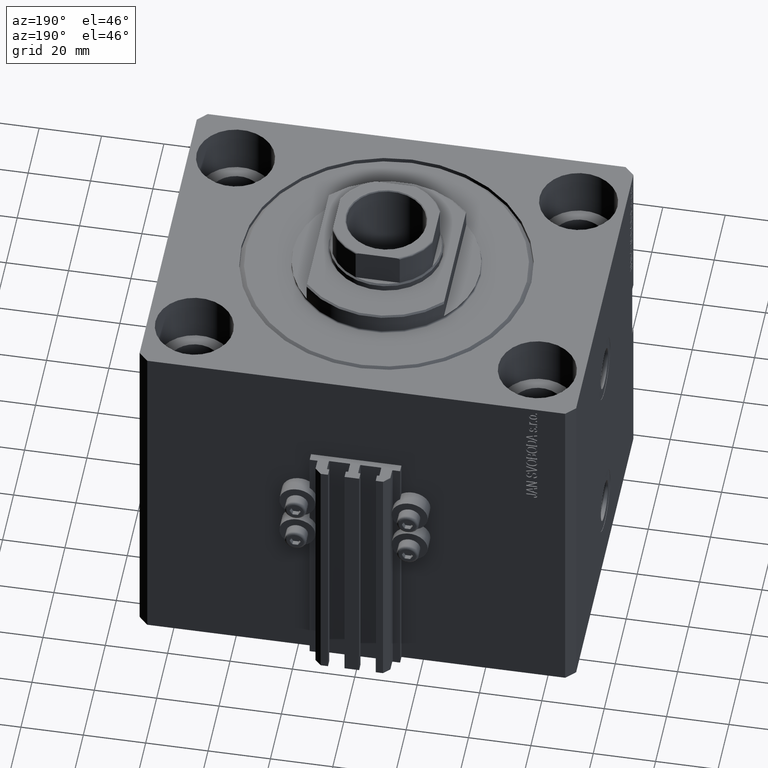
[diagram: clean part render]
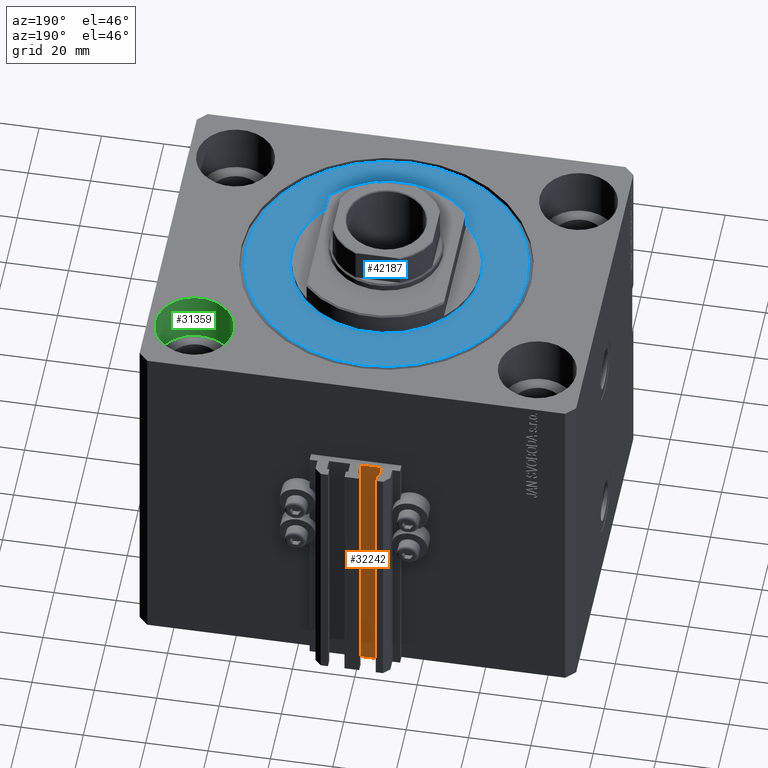
[diagram: same view with three faces highlighted in distinct colors, each labeled with its STEP entity id]
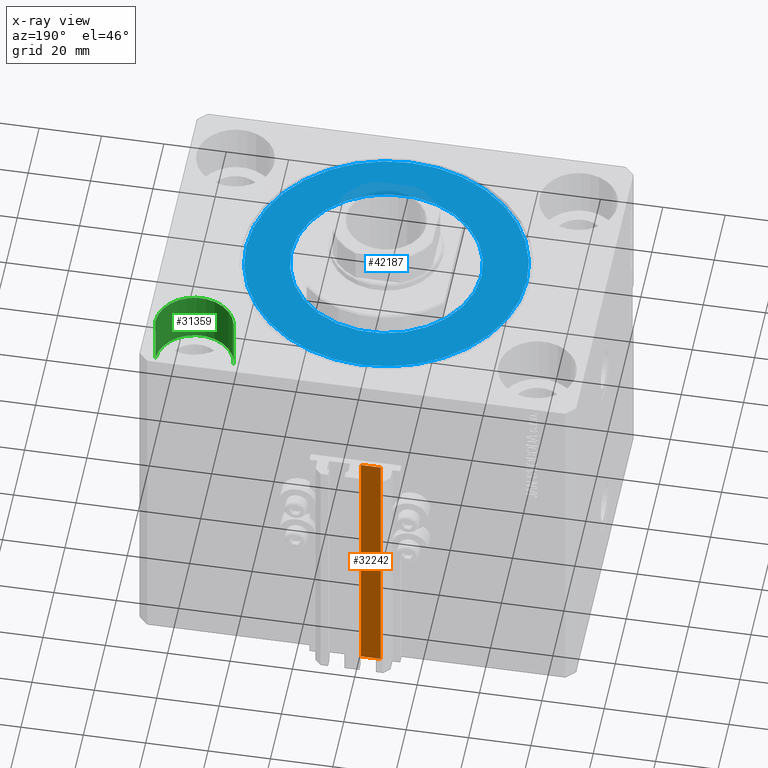
[diagram: x-ray of the same camera — body ghosted, the three highlighted faces saturated]
A machine part, auxiliary view with three faces highlighted in distinct colors.
The next image is the same camera in x-ray (body ghosted, the three faces saturated) — at least one of them is partly hidden behind the body in this view.
Their STEP definitions:

[orange] entity #32242 — the highlighted planar face has unit normal (0, 1, 0).
#1852 = ORIENTED_EDGE ( 'NONE', *, *, #2286, .F. ) ;
#2286 = EDGE_CURVE ( 'NONE', #36978, #2469, #24624, .T. ) ;
#2469 = VERTEX_POINT ( 'NONE', #41845 ) ;
#3628 = ORIENTED_EDGE ( 'NONE', *, *, #23693, .F. ) ;
#5125 = CARTESIAN_POINT ( 'NONE',  ( -1.800000000000000933, 57.00000000000000000, -33.00000000000000000 ) ) ;
#6742 = LINE ( 'NONE', #13917, #10390 ) ;
#8605 = DIRECTION ( 'NONE',  ( 0.000000000000000000, 0.000000000000000000, 1.000000000000000000 ) ) ;
#9107 = CARTESIAN_POINT ( 'NONE',  ( -1.800000000000000933, 57.00000000000000000, -120.0000000000000000 ) ) ;
#9989 = EDGE_CURVE ( 'NONE', #18657, #13874, #25956, .T. ) ;
#10390 = VECTOR ( 'NONE', #32421, 1000.000000000000000 ) ;
#12564 = DIRECTION ( 'NONE',  ( 0.000000000000000000, 1.000000000000000000, -0.000000000000000000 ) ) ;
#13061 = PLANE ( 'NONE',  #34007 ) ;
#13874 = VERTEX_POINT ( 'NONE', #20438 ) ;
#13917 = CARTESIAN_POINT ( 'NONE',  ( -8.199999999999997513, 57.00000000000000000, -120.0000000000000000 ) ) ;
#17358 = CARTESIAN_POINT ( 'NONE',  ( -1.800000000000000933, 57.00000000000000000, -120.0000000000000000 ) ) ;
#18657 = VERTEX_POINT ( 'NONE', #42177 ) ;
#19456 = ORIENTED_EDGE ( 'NONE', *, *, #41824, .T. ) ;
#20438 = CARTESIAN_POINT ( 'NONE',  ( -8.199999999999997513, 57.00000000000000000, -120.0000000000000000 ) ) ;
#21927 = DIRECTION ( 'NONE',  ( 0.000000000000000000, 0.000000000000000000, 1.000000000000000000 ) ) ;
#23693 = EDGE_CURVE ( 'NONE', #18657, #36978, #32552, .T. ) ;
#24624 = LINE ( 'NONE', #43126, #40946 ) ;
#25956 = LINE ( 'NONE', #17358, #27197 ) ;
#27197 = VECTOR ( 'NONE', #37062, 1000.000000000000000 ) ;
#27718 = EDGE_LOOP ( 'NONE', ( #1852, #3628, #40988, #19456 ) ) ;
#28567 = DIRECTION ( 'NONE',  ( -1.000000000000000000, 0.000000000000000000, 0.000000000000000000 ) ) ;
#32242 = ADVANCED_FACE ( 'NONE', ( #46350 ), #13061, .T. ) ;
#32249 = VECTOR ( 'NONE', #21927, 1000.000000000000000 ) ;
#32421 = DIRECTION ( 'NONE',  ( 0.000000000000000000, 0.000000000000000000, 1.000000000000000000 ) ) ;
#32552 = LINE ( 'NONE', #44617, #32249 ) ;
#34007 = AXIS2_PLACEMENT_3D ( 'NONE', #9107, #12564, #8605 ) ;
#36978 = VERTEX_POINT ( 'NONE', #5125 ) ;
#37062 = DIRECTION ( 'NONE',  ( -1.000000000000000000, 0.000000000000000000, 0.000000000000000000 ) ) ;
#40946 = VECTOR ( 'NONE', #28567, 1000.000000000000000 ) ;
#40988 = ORIENTED_EDGE ( 'NONE', *, *, #9989, .T. ) ;
#41824 = EDGE_CURVE ( 'NONE', #13874, #2469, #6742, .T. ) ;
#41845 = CARTESIAN_POINT ( 'NONE',  ( -8.199999999999997513, 57.00000000000000000, -33.00000000000000000 ) ) ;
#42177 = CARTESIAN_POINT ( 'NONE',  ( -1.800000000000000933, 57.00000000000000000, -120.0000000000000000 ) ) ;
#43126 = CARTESIAN_POINT ( 'NONE',  ( -1.800000000000000933, 57.00000000000000000, -33.00000000000000000 ) ) ;
#44617 = CARTESIAN_POINT ( 'NONE',  ( -1.800000000000000933, 57.00000000000000000, -120.0000000000000000 ) ) ;
#46350 = FACE_OUTER_BOUND ( 'NONE', #27718, .T. ) ;

[blue] entity #42187 — the highlighted planar face has unit normal (0, 0, -1).
#22 = EDGE_LOOP ( 'NONE', ( #11378, #44559 ) ) ;
#939 = DIRECTION ( 'NONE',  ( 0.000000000000000000, 0.000000000000000000, 1.000000000000000000 ) ) ;
#3536 = DIRECTION ( 'NONE',  ( 1.000000000000000000, 0.000000000000000000, 0.000000000000000000 ) ) ;
#4148 = DIRECTION ( 'NONE',  ( 1.000000000000000000, 0.000000000000000000, -0.000000000000000000 ) ) ;
#7204 = DIRECTION ( 'NONE',  ( 1.000000000000000000, 0.000000000000000000, 0.000000000000000000 ) ) ;
#7289 = VERTEX_POINT ( 'NONE', #34628 ) ;
#7408 = AXIS2_PLACEMENT_3D ( 'NONE', #8682, #12147, #20043 ) ;
#7902 = AXIS2_PLACEMENT_3D ( 'NONE', #14879, #23265, #3536 ) ;
#8682 = CARTESIAN_POINT ( 'NONE',  ( 0.000000000000000000, 0.000000000000000000, 0.000000000000000000 ) ) ;
#10487 = DIRECTION ( 'NONE',  ( 0.000000000000000000, 0.000000000000000000, 1.000000000000000000 ) ) ;
#11174 = AXIS2_PLACEMENT_3D ( 'NONE', #19699, #939, #4148 ) ;
#11378 = ORIENTED_EDGE ( 'NONE', *, *, #14379, .T. ) ;
#12147 = DIRECTION ( 'NONE',  ( 0.000000000000000000, 0.000000000000000000, 1.000000000000000000 ) ) ;
#12267 = CIRCLE ( 'NONE', #48484, 30.50000000000000000 ) ;
#14379 = EDGE_CURVE ( 'NONE', #39795, #47727, #12267, .T. ) ;
#14879 = CARTESIAN_POINT ( 'NONE',  ( 0.000000000000000000, 0.000000000000000000, 0.000000000000000000 ) ) ;
#15802 = CIRCLE ( 'NONE', #25231, 45.00000000000000000 ) ;
#19552 = CARTESIAN_POINT ( 'NONE',  ( 30.50000000000000000, 0.000000000000000000, 2.168404344971008868E-16 ) ) ;
#19699 = CARTESIAN_POINT ( 'NONE',  ( 0.000000000000000000, 0.000000000000000000, 0.000000000000000000 ) ) ;
#20043 = DIRECTION ( 'NONE',  ( 1.000000000000000000, 0.000000000000000000, 0.000000000000000000 ) ) ;
#22187 = ORIENTED_EDGE ( 'NONE', *, *, #38230, .T. ) ;
#22900 = FACE_BOUND ( 'NONE', #22, .T. ) ;
#23265 = DIRECTION ( 'NONE',  ( -0.000000000000000000, -0.000000000000000000, -1.000000000000000000 ) ) ;
#25231 = AXIS2_PLACEMENT_3D ( 'NONE', #30382, #25940, #7204 ) ;
#25271 = ORIENTED_EDGE ( 'NONE', *, *, #25688, .T. ) ;
#25688 = EDGE_CURVE ( 'NONE', #29156, #7289, #15802, .T. ) ;
#25940 = DIRECTION ( 'NONE',  ( -0.000000000000000000, -0.000000000000000000, -1.000000000000000000 ) ) ;
#26108 = FACE_OUTER_BOUND ( 'NONE', #31483, .T. ) ;
#29156 = VERTEX_POINT ( 'NONE', #32798 ) ;
#29805 = PLANE ( 'NONE',  #11174 ) ;
#30262 = CIRCLE ( 'NONE', #7408, 30.50000000000000000 ) ;
#30382 = CARTESIAN_POINT ( 'NONE',  ( 0.000000000000000000, 0.000000000000000000, 0.000000000000000000 ) ) ;
#31023 = CARTESIAN_POINT ( 'NONE',  ( -30.50000000000000000, 3.735172737399427541E-15, 2.168404344971008868E-16 ) ) ;
#31483 = EDGE_LOOP ( 'NONE', ( #22187, #25271 ) ) ;
#32798 = CARTESIAN_POINT ( 'NONE',  ( -45.00000000000000000, 5.602759106099140917E-15, 0.000000000000000000 ) ) ;
#34628 = CARTESIAN_POINT ( 'NONE',  ( 45.00000000000000000, 0.000000000000000000, 0.000000000000000000 ) ) ;
#38230 = EDGE_CURVE ( 'NONE', #7289, #29156, #44130, .T. ) ;
#39795 = VERTEX_POINT ( 'NONE', #19552 ) ;
#40084 = CARTESIAN_POINT ( 'NONE',  ( 0.000000000000000000, 0.000000000000000000, 0.000000000000000000 ) ) ;
#42187 = ADVANCED_FACE ( 'NONE', ( #22900, #26108 ), #29805, .F. ) ;
#43304 = DIRECTION ( 'NONE',  ( 1.000000000000000000, 0.000000000000000000, 0.000000000000000000 ) ) ;
#44130 = CIRCLE ( 'NONE', #7902, 45.00000000000000000 ) ;
#44559 = ORIENTED_EDGE ( 'NONE', *, *, #46421, .T. ) ;
#46421 = EDGE_CURVE ( 'NONE', #47727, #39795, #30262, .T. ) ;
#47727 = VERTEX_POINT ( 'NONE', #31023 ) ;
#48484 = AXIS2_PLACEMENT_3D ( 'NONE', #40084, #10487, #43304 ) ;

[green] entity #31359 — the highlighted cylindrical surface (partial cylindrical patch) has radius 12.5 mm, axis along (0, 0, 1).
#2544 = CARTESIAN_POINT ( 'NONE',  ( 42.50000000000000711, 37.50000000000002132, -17.00000000000000000 ) ) ;
#5253 = CIRCLE ( 'NONE', #37429, 12.49999999999999645 ) ;
#5811 = CARTESIAN_POINT ( 'NONE',  ( 67.50000000000000000, 37.50000000000002132, -17.00000000000000000 ) ) ;
#6216 = CARTESIAN_POINT ( 'NONE',  ( 67.50000000000000000, 37.50000000000002132, 0.000000000000000000 ) ) ;
#8308 = VERTEX_POINT ( 'NONE', #6216 ) ;
#9638 = ORIENTED_EDGE ( 'NONE', *, *, #34282, .F. ) ;
#10133 = EDGE_CURVE ( 'NONE', #29642, #24580, #14579, .T. ) ;
#10340 = AXIS2_PLACEMENT_3D ( 'NONE', #47311, #21157, #35734 ) ;
#11440 = ORIENTED_EDGE ( 'NONE', *, *, #10133, .F. ) ;
#11736 = VECTOR ( 'NONE', #28978, 1000.000000000000000 ) ;
#13267 = ORIENTED_EDGE ( 'NONE', *, *, #13506, .T. ) ;
#13506 = EDGE_CURVE ( 'NONE', #35499, #8308, #5253, .T. ) ;
#14579 = CIRCLE ( 'NONE', #27976, 12.49999999999999645 ) ;
#16793 = CARTESIAN_POINT ( 'NONE',  ( 55.00000000000000711, 37.50000000000002132, 0.000000000000000000 ) ) ;
#17467 = CYLINDRICAL_SURFACE ( 'NONE', #10340, 12.49999999999999645 ) ;
#20377 = CARTESIAN_POINT ( 'NONE',  ( 42.50000000000000711, 37.50000000000002132, -17.00000000000000000 ) ) ;
#20886 = ORIENTED_EDGE ( 'NONE', *, *, #36669, .T. ) ;
#21157 = DIRECTION ( 'NONE',  ( -0.000000000000000000, -0.000000000000000000, 1.000000000000000000 ) ) ;
#24312 = LINE ( 'NONE', #5811, #11736 ) ;
#24430 = CARTESIAN_POINT ( 'NONE',  ( 67.50000000000000000, 37.50000000000002132, -17.00000000000000000 ) ) ;
#24580 = VERTEX_POINT ( 'NONE', #24430 ) ;
#27442 = DIRECTION ( 'NONE',  ( 0.000000000000000000, 0.000000000000000000, 1.000000000000000000 ) ) ;
#27896 = DIRECTION ( 'NONE',  ( 0.000000000000000000, 0.000000000000000000, 1.000000000000000000 ) ) ;
#27976 = AXIS2_PLACEMENT_3D ( 'NONE', #35812, #27442, #38782 ) ;
#28978 = DIRECTION ( 'NONE',  ( -0.000000000000000000, -0.000000000000000000, 1.000000000000000000 ) ) ;
#29642 = VERTEX_POINT ( 'NONE', #20377 ) ;
#30616 = EDGE_LOOP ( 'NONE', ( #11440, #20886, #13267, #9638 ) ) ;
#31359 = ADVANCED_FACE ( 'NONE', ( #32264 ), #17467, .F. ) ;
#32264 = FACE_OUTER_BOUND ( 'NONE', #30616, .T. ) ;
#34282 = EDGE_CURVE ( 'NONE', #24580, #8308, #24312, .T. ) ;
#35499 = VERTEX_POINT ( 'NONE', #42224 ) ;
#35734 = DIRECTION ( 'NONE',  ( 1.000000000000000000, 0.000000000000000000, 0.000000000000000000 ) ) ;
#35812 = CARTESIAN_POINT ( 'NONE',  ( 55.00000000000000711, 37.50000000000002132, -17.00000000000000000 ) ) ;
#36669 = EDGE_CURVE ( 'NONE', #29642, #35499, #40526, .T. ) ;
#37429 = AXIS2_PLACEMENT_3D ( 'NONE', #16793, #27896, #42694 ) ;
#38782 = DIRECTION ( 'NONE',  ( 1.000000000000000000, 0.000000000000000000, 0.000000000000000000 ) ) ;
#40526 = LINE ( 'NONE', #2544, #40920 ) ;
#40920 = VECTOR ( 'NONE', #44470, 1000.000000000000000 ) ;
#42224 = CARTESIAN_POINT ( 'NONE',  ( 42.50000000000000711, 37.50000000000002132, 0.000000000000000000 ) ) ;
#42694 = DIRECTION ( 'NONE',  ( 1.000000000000000000, 0.000000000000000000, 0.000000000000000000 ) ) ;
#44470 = DIRECTION ( 'NONE',  ( -0.000000000000000000, -0.000000000000000000, 1.000000000000000000 ) ) ;
#47311 = CARTESIAN_POINT ( 'NONE',  ( 55.00000000000000711, 37.50000000000002132, -17.00000000000000000 ) ) ;